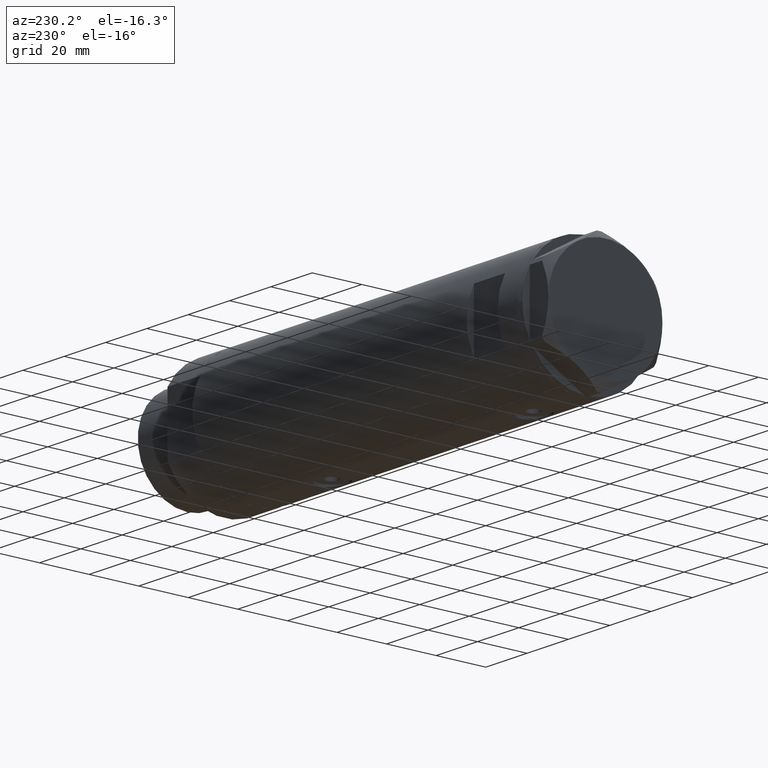
[diagram: clean part render]
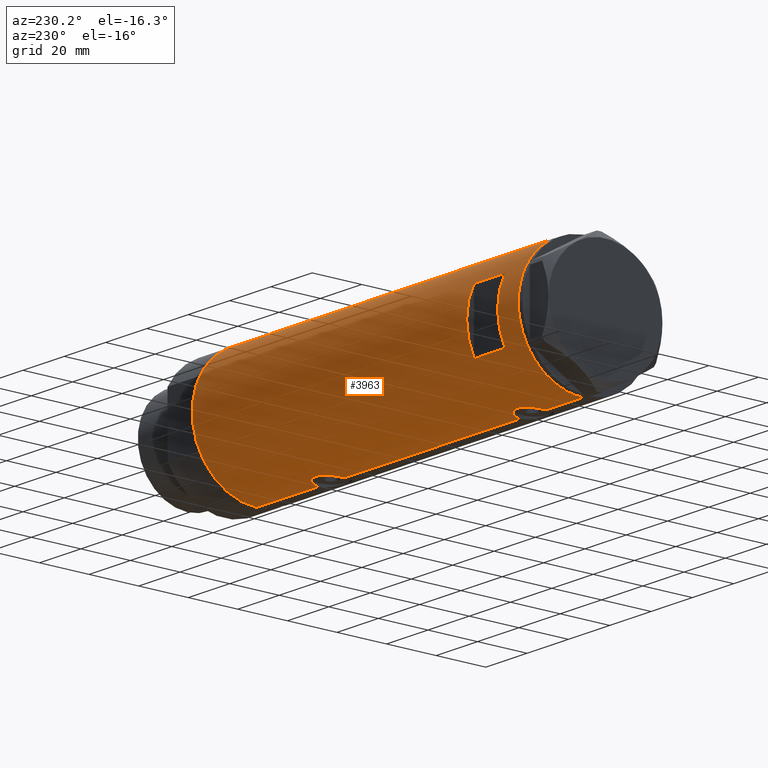
[diagram: same view with one face highlighted and labeled with its STEP entity id]
A machine part, auxiliary view. The second image highlights one B-rep face of the part: STEP entity #3963.
In plain terms, the highlighted cylindrical surface (partial cylindrical patch) has radius 26 mm, axis along (-1, -0, 0).
Its self-contained STEP definition (entity closure, byte-faithful):
#7 = CARTESIAN_POINT ( 'NONE',  ( 24.90951684770588415, 7.451587374037535128, 58.46604395478803440 ) ) ;
#12 = CARTESIAN_POINT ( 'NONE',  ( -25.52275868012767646, 4.960454986366448438, 51.14238370593368899 ) ) ;
#48 = EDGE_CURVE ( 'NONE', #4549, #1861, #3629, .T. ) ;
#57 = CARTESIAN_POINT ( 'NONE',  ( 25.01140519645288762, 7.101774040639623919, -42.17392235700824443 ) ) ;
#89 = CARTESIAN_POINT ( 'NONE',  ( 25.48882460966380492, 5.133289275481218716, -45.22343523597909609 ) ) ;
#99 = DIRECTION ( 'NONE',  ( 0.000000000000000000, 0.000000000000000000, 1.000000000000000000 ) ) ;
#110 = CARTESIAN_POINT ( 'NONE',  ( 25.89067367629246164, 2.424883365422552561, -32.63594795494832113 ) ) ;
#111 = LINE ( 'NONE', #866, #1901 ) ;
#115 = DIRECTION ( 'NONE',  ( 0.000000000000000000, 1.000000000000000000, -4.536969091016264466E-15 ) ) ;
#128 = CARTESIAN_POINT ( 'NONE',  ( 25.88814720404043968, 2.420758939209242566, -46.85288286828453863 ) ) ;
#148 = CARTESIAN_POINT ( 'NONE',  ( 25.89067367629246164, 2.424883365422551229, 66.56405204505169593 ) ) ;
#177 = CARTESIAN_POINT ( 'NONE',  ( 24.89484527721569052, 7.499778575171895056, 58.95449194517063773 ) ) ;
#192 = CARTESIAN_POINT ( 'NONE',  ( -25.23757896588370286, 6.250168635417627350, 54.54324691589500418 ) ) ;
#228 = AXIS2_PLACEMENT_3D ( 'NONE', #3494, #3446, #3909 ) ;
#244 = CARTESIAN_POINT ( 'NONE',  ( -25.52242378584899285, 4.965907353613394193, 58.76719602921738783 ) ) ;
#277 = CARTESIAN_POINT ( 'NONE',  ( -26.00000000000000355, 3.184081677783118585E-15, 78.95000000000000284 ) ) ;
#282 = CARTESIAN_POINT ( 'NONE',  ( -25.31738333113901618, 5.918941409682885180, -40.63242077527679186 ) ) ;
#315 = AXIS2_PLACEMENT_3D ( 'NONE', #2552, #2898, #4501 ) ;
#322 = CARTESIAN_POINT ( 'NONE',  ( -25.38875076695534716, 5.605452563035134617, 52.17814099175896558 ) ) ;
#327 = LINE ( 'NONE', #4713, #2987 ) ;
#339 = CARTESIAN_POINT ( 'NONE',  ( -25.67176285215957066, 4.128807479817786508, -47.35991598451124673 ) ) ;
#359 = CARTESIAN_POINT ( 'NONE',  ( -25.72087293759779314, 3.814831448865740438, -47.61738294827858908 ) ) ;
#370 = ORIENTED_EDGE ( 'NONE', *, *, #48, .F. ) ;
#384 = CARTESIAN_POINT ( 'NONE',  ( -25.27696731428695642, 6.089059008147568619, -41.22583693040520103 ) ) ;
#447 = CARTESIAN_POINT ( 'NONE',  ( 26.00000000000000000, 0.2455784580650491877, -32.25000000000000000 ) ) ;
#456 = LINE ( 'NONE', #2627, #1740 ) ;
#484 = CARTESIAN_POINT ( 'NONE',  ( 0.000000000000000000, 0.000000000000000000, 78.95000000000000284 ) ) ;
#493 = CARTESIAN_POINT ( 'NONE',  ( 25.99652140603930661, 0.4914164889130520075, 66.93796820480456233 ) ) ;
#501 = CARTESIAN_POINT ( 'NONE',  ( 25.78997056644824326, 3.329333406239038951, -33.01165191566153823 ) ) ;
#532 = ORIENTED_EDGE ( 'NONE', *, *, #4282, .T. ) ;
#537 = CARTESIAN_POINT ( 'NONE',  ( 25.78922176490237916, 3.335318700939509995, 52.71449431233524052 ) ) ;
#542 = CARTESIAN_POINT ( 'NONE',  ( 26.00000000000000711, 0.4983968644076025023, -47.25000000000000000 ) ) ;
#562 = CARTESIAN_POINT ( 'NONE',  ( 25.93077501166307286, 1.957027822413553109, 66.70697858562409976 ) ) ;
#582 = DIRECTION ( 'NONE',  ( 0.000000000000000000, 0.000000000000000000, 1.000000000000000000 ) ) ;
#636 = DIRECTION ( 'NONE',  ( 1.000000000000000000, -5.329070518200751394E-15, 0.000000000000000000 ) ) ;
#664 = DIRECTION ( 'NONE',  ( -0.000000000000000000, -0.000000000000000000, -1.000000000000000000 ) ) ;
#686 = EDGE_LOOP ( 'NONE', ( #884, #1876, #1244, #3787 ) ) ;
#709 = CARTESIAN_POINT ( 'NONE',  ( -26.00000000000000355, 3.184077527313362130E-15, 48.70000000000000995 ) ) ;
#719 = DIRECTION ( 'NONE',  ( 0.000000000000000000, 0.000000000000000000, 1.000000000000000000 ) ) ;
#726 = CARTESIAN_POINT ( 'NONE',  ( -25.23766275406409321, 6.249830297096033327, -42.23808095444884714 ) ) ;
#729 = CARTESIAN_POINT ( 'NONE',  ( 25.98569222077105678, 0.9879514382926382066, 51.99918153312441405 ) ) ;
#739 = DIRECTION ( 'NONE',  ( 0.000000000000000000, 0.000000000000000000, 1.000000000000000000 ) ) ;
#755 = CARTESIAN_POINT ( 'NONE',  ( -25.67095236150573712, 4.133649689219794254, -37.94464771725741770 ) ) ;
#781 = CARTESIAN_POINT ( 'NONE',  ( -26.00000000000000355, 3.184077527325983904E-15, -48.90000000000001279 ) ) ;
#788 = CARTESIAN_POINT ( 'NONE',  ( 26.00000000000000355, 0.000000000000000000, -78.95000000000000284 ) ) ;
#806 = CARTESIAN_POINT ( 'NONE',  ( -25.38875076695535071, 5.605452563035138169, -45.42185900824106426 ) ) ;
#826 = VECTOR ( 'NONE', #3342, 1000.000000000000000 ) ;
#829 = VECTOR ( 'NONE', #719, 1000.000000000000000 ) ;
#844 = ORIENTED_EDGE ( 'NONE', *, *, #4923, .F. ) ;
#849 = DIRECTION ( 'NONE',  ( 0.000000000000000000, 4.625929269271486900E-15, 1.000000000000000000 ) ) ;
#866 = CARTESIAN_POINT ( 'NONE',  ( 12.12435565298214080, 23.00000000000000355, -78.95000000000000284 ) ) ;
#875 = CARTESIAN_POINT ( 'NONE',  ( -12.12435565298214080, 23.00000000000000355, 68.95000000000003126 ) ) ;
#883 = CARTESIAN_POINT ( 'NONE',  ( 24.95233689475079331, 7.306396477445179727, 57.73896186853336587 ) ) ;
#884 = ORIENTED_EDGE ( 'NONE', *, *, #2285, .F. ) ;
#888 = CARTESIAN_POINT ( 'NONE',  ( 24.96662810169869573, 7.257932614256868753, -37.79702690473265392 ) ) ;
#917 = CARTESIAN_POINT ( 'NONE',  ( 25.86510134953875450, 2.654921787384013854, -46.76867061694904493 ) ) ;
#930 = CARTESIAN_POINT ( 'NONE',  ( 25.59528664075984494, 4.573671112500300673, 53.50090496483274904 ) ) ;
#936 = CARTESIAN_POINT ( 'NONE',  ( 25.72923282622328855, 3.765147152416745246, -46.25485575784708914 ) ) ;
#952 = CARTESIAN_POINT ( 'NONE',  ( 25.72868876879096334, 3.768709330223684706, 65.95267486870066875 ) ) ;
#973 = CARTESIAN_POINT ( 'NONE',  ( -25.95015815577423268, 1.621168830448741938, 60.98958570439820193 ) ) ;
#984 = CARTESIAN_POINT ( 'NONE',  ( 25.99999999999999645, 0.2455784580650495763, 66.94999999999998863 ) ) ;
#998 = CARTESIAN_POINT ( 'NONE',  ( 26.00000000000000355, 0.000000000000000000, -78.95000000000000284 ) ) ;
#1025 = CARTESIAN_POINT ( 'NONE',  ( -25.72105193281917224, 3.813738527046911297, 59.91833691099432713 ) ) ;
#1045 = CARTESIAN_POINT ( 'NONE',  ( -25.28673619335055278, 6.048783215285168602, 53.32449009651820404 ) ) ;
#1099 = CARTESIAN_POINT ( 'NONE',  ( -25.90661719257678541, 2.209805098346977914, -36.80011254218479166 ) ) ;
#1127 = EDGE_CURVE ( 'NONE', #3285, #5065, #2891, .T. ) ;
#1133 = CARTESIAN_POINT ( 'NONE',  ( -12.12435565298214080, 23.00000000000000355, -78.95000000000000284 ) ) ;
#1141 = CARTESIAN_POINT ( 'NONE',  ( 26.00000000000000355, 0.000000000000000000, -78.95000000000000284 ) ) ;
#1151 = CARTESIAN_POINT ( 'NONE',  ( -25.33346170681504006, 5.849967696906725578, -40.44052947900493677 ) ) ;
#1181 = CARTESIAN_POINT ( 'NONE',  ( -25.31518616157687873, 5.930210831981644226, -44.66587117207026836 ) ) ;
#1189 = CARTESIAN_POINT ( 'NONE',  ( -25.92432690655986960, 2.018143994254070872, 49.02070577177285315 ) ) ;
#1207 = CARTESIAN_POINT ( 'NONE',  ( -25.81206132723604441, 3.139065735901513055, -48.06978769360877379 ) ) ;
#1237 = CARTESIAN_POINT ( 'NONE',  ( 25.38117076385348625, 5.641057083563588037, -34.80143420258151110 ) ) ;
#1244 = ORIENTED_EDGE ( 'NONE', *, *, #3218, .F. ) ;
#1266 = CARTESIAN_POINT ( 'NONE',  ( 25.38132706741445688, 5.649034551923786118, -44.70731952814045229 ) ) ;
#1289 = CARTESIAN_POINT ( 'NONE',  ( 25.78922176490237916, 3.335318700939508219, -46.48550568766475521 ) ) ;
#1297 = EDGE_CURVE ( 'NONE', #4935, #5056, #327, .T. ) ;
#1298 = EDGE_CURVE ( 'NONE', #2548, #4577, #1313, .T. ) ;
#1313 = CIRCLE ( 'NONE', #4246, 26.00000000000000355 ) ;
#1331 = CARTESIAN_POINT ( 'NONE',  ( 25.27545867390324474, 6.096774941222085964, 63.82477406957966082 ) ) ;
#1338 = CARTESIAN_POINT ( 'NONE',  ( 25.98569222077104968, 0.9879514382926379845, -47.20081846687561011 ) ) ;
#1378 = CARTESIAN_POINT ( 'NONE',  ( 25.52590365620543622, 4.955152228772147893, 65.10123727588241138 ) ) ;
#1398 = CARTESIAN_POINT ( 'NONE',  ( -25.31738333113901973, 5.918941409682879851, 56.96757922472323799 ) ) ;
#1426 = CARTESIAN_POINT ( 'NONE',  ( -25.99009688862344092, 0.8219492608955323298, 61.15915939226576370 ) ) ;
#1468 = CARTESIAN_POINT ( 'NONE',  ( -25.36894112891956965, 5.694149517195234544, 52.36517494801690731 ) ) ;
#1493 = CARTESIAN_POINT ( 'NONE',  ( -25.95208098418916975, 1.628413954368978622, -48.69806792170717813 ) ) ;
#1537 = LINE ( 'NONE', #1141, #829 ) ;
#1540 = ORIENTED_EDGE ( 'NONE', *, *, #1297, .T. ) ;
#1544 = CARTESIAN_POINT ( 'NONE',  ( -25.95015815577423623, 1.621168830448744380, -36.61041429560181371 ) ) ;
#1554 = CARTESIAN_POINT ( 'NONE',  ( -25.99999999999999289, 0.2043916521039015888, 48.69999999999999574 ) ) ;
#1571 = CARTESIAN_POINT ( 'NONE',  ( -25.57167265924275412, 4.701795585128879296, -46.77276288310034147 ) ) ;
#1603 = CARTESIAN_POINT ( 'NONE',  ( 25.11550258961940330, 6.725017566862032226, 62.77928477806020169 ) ) ;
#1629 = CARTESIAN_POINT ( 'NONE',  ( 24.90951684770588415, 7.451587374037536016, -40.73395604521197555 ) ) ;
#1717 = CARTESIAN_POINT ( 'NONE',  ( 25.72923282622329566, 3.765147152416745246, 52.94514424215292081 ) ) ;
#1723 = CARTESIAN_POINT ( 'NONE',  ( 25.11254978876589306, 6.737777305585159304, -43.08025351746413634 ) ) ;
#1731 = AXIS2_PLACEMENT_3D ( 'NONE', #484, #99, #4927 ) ;
#1739 = EDGE_CURVE ( 'NONE', #3746, #4549, #3403, .T. ) ;
#1740 = VECTOR ( 'NONE', #582, 1000.000000000000000 ) ;
#1747 = CARTESIAN_POINT ( 'NONE',  ( 25.97197502027376004, 1.230965554787596394, 66.85240824498376355 ) ) ;
#1842 = CARTESIAN_POINT ( 'NONE',  ( -25.24784248027030031, 6.209126813737962713, 54.12731838311943022 ) ) ;
#1861 = VERTEX_POINT ( 'NONE', #3731 ) ;
#1876 = ORIENTED_EDGE ( 'NONE', *, *, #2480, .F. ) ;
#1881 = CARTESIAN_POINT ( 'NONE',  ( 25.94484652078419273, 1.709678645892020343, 52.14334653240825190 ) ) ;
#1887 = CARTESIAN_POINT ( 'NONE',  ( -26.00000000000000355, -2.813058302341337106E-16, 61.20000000000000284 ) ) ;
#1901 = VECTOR ( 'NONE', #3638, 1000.000000000000000 ) ;
#1921 = CARTESIAN_POINT ( 'NONE',  ( -25.95208098418916620, 1.628413954368980399, 48.90193207829285882 ) ) ;
#1923 = CARTESIAN_POINT ( 'NONE',  ( -26.00000000000000355, 3.184081677783118585E-15, -78.95000000000000284 ) ) ;
#1941 = EDGE_CURVE ( 'NONE', #4321, #2261, #4254, .T. ) ;
#1947 = CARTESIAN_POINT ( 'NONE',  ( -25.43062364804612230, 5.412314182902753679, 51.81772351419070333 ) ) ;
#1963 = CARTESIAN_POINT ( 'NONE',  ( -25.92432690655987315, 2.018143994254076201, -48.57929422822716958 ) ) ;
#1971 = CARTESIAN_POINT ( 'NONE',  ( -25.85449082491264861, 2.772892880050687126, 49.33390702514680015 ) ) ;
#1989 = CARTESIAN_POINT ( 'NONE',  ( -25.28673619335055989, 6.048783215285176595, -44.27550990348180449 ) ) ;
#1994 = CARTESIAN_POINT ( 'NONE',  ( 25.52465069878074644, 4.952713637311400241, 53.81255139184744252 ) ) ;
#2049 = CARTESIAN_POINT ( 'NONE',  ( 26.00000000000000355, -3.975025925197986111E-20, -32.25000000000000000 ) ) ;
#2089 = FACE_OUTER_BOUND ( 'NONE', #4962, .T. ) ;
#2096 = CARTESIAN_POINT ( 'NONE',  ( 24.97016856345952363, 7.245430721349218395, 57.49696959080608138 ) ) ;
#2117 = CARTESIAN_POINT ( 'NONE',  ( 25.86510134953875450, 2.654921787384014298, 52.43132938305096502 ) ) ;
#2122 = CARTESIAN_POINT ( 'NONE',  ( 26.00000000000000355, 3.343657407582877388E-16, -47.25000000000000000 ) ) ;
#2136 = CARTESIAN_POINT ( 'NONE',  ( 25.48882460966380847, 5.133289275481219605, 53.97656476402093517 ) ) ;
#2143 = CARTESIAN_POINT ( 'NONE',  ( 25.17424625143663164, 6.506691718592096940, -43.51241626033723975 ) ) ;
#2169 = CARTESIAN_POINT ( 'NONE',  ( 26.00000000000000355, -3.975028449552882818E-20, 66.95000000000000284 ) ) ;
#2203 = VERTEX_POINT ( 'NONE', #3952 ) ;
#2229 = CARTESIAN_POINT ( 'NONE',  ( -25.27696731428695998, 6.089059008147561514, 56.37416306959482171 ) ) ;
#2242 = CARTESIAN_POINT ( 'NONE',  ( -26.00000000000000355, -2.813058302341337106E-16, 61.20000000000000284 ) ) ;
#2261 = VERTEX_POINT ( 'NONE', #1923 ) ;
#2285 = EDGE_CURVE ( 'NONE', #2203, #2548, #3135, .T. ) ;
#2302 = CARTESIAN_POINT ( 'NONE',  ( -25.98057228346869962, 1.024901789261879470, -48.81880585854828070 ) ) ;
#2309 = CARTESIAN_POINT ( 'NONE',  ( -25.98057228346870673, 1.024901789261881913, 48.78119414145176336 ) ) ;
#2344 = CARTESIAN_POINT ( 'NONE',  ( -25.99759026373432036, 0.4091325989570642196, 48.71000109955099333 ) ) ;
#2362 = CARTESIAN_POINT ( 'NONE',  ( -25.81251897318926680, 3.135439098787741852, -37.22800821914827907 ) ) ;
#2445 = CARTESIAN_POINT ( 'NONE',  ( 25.97197502027375293, 1.230965554787593730, -32.34759175501623218 ) ) ;
#2468 = CARTESIAN_POINT ( 'NONE',  ( 25.59528664075983428, 4.573671112500298896, -45.69909503516725380 ) ) ;
#2480 = EDGE_CURVE ( 'NONE', #3560, #2203, #2830, .T. ) ;
#2485 = CARTESIAN_POINT ( 'NONE',  ( 25.17636585680006434, 6.493453152855875210, 63.21099249662805164 ) ) ;
#2486 = ORIENTED_EDGE ( 'NONE', *, *, #2707, .T. ) ;
#2493 = CARTESIAN_POINT ( 'NONE',  ( 25.03487248886523986, 7.018875226450791871, -42.40423217392064714 ) ) ;
#2515 = CARTESIAN_POINT ( 'NONE',  ( 25.38132706741445688, 5.649034551923787895, 54.49268047185956476 ) ) ;
#2520 = CARTESIAN_POINT ( 'NONE',  ( 25.63006864069249602, 4.375159448492148329, -45.84654411758881309 ) ) ;
#2535 = CARTESIAN_POINT ( 'NONE',  ( 25.38117076385348270, 5.641057083563592478, 64.39856579741849885 ) ) ;
#2542 = CARTESIAN_POINT ( 'NONE',  ( 25.41763780493360514, 5.474943943663457269, -34.61823686211066331 ) ) ;
#2548 = VERTEX_POINT ( 'NONE', #875 ) ;
#2552 = CARTESIAN_POINT ( 'NONE',  ( 0.000000000000000000, 0.000000000000000000, -78.95000000000000284 ) ) ;
#2559 = CARTESIAN_POINT ( 'NONE',  ( 25.00820649268566598, 7.115348876445588999, 61.87184000475453161 ) ) ;
#2574 = ORIENTED_EDGE ( 'NONE', *, *, #4125, .F. ) ;
#2582 = CARTESIAN_POINT ( 'NONE',  ( -25.42927140605241121, 5.422776733968213136, 58.08443996013282629 ) ) ;
#2592 = CARTESIAN_POINT ( 'NONE',  ( 25.92799636947106023, 1.948138538329397873, 52.20322312211786908 ) ) ;
#2627 = CARTESIAN_POINT ( 'NONE',  ( -26.00000000000000355, 3.184081677783118585E-15, -78.95000000000000284 ) ) ;
#2628 = CARTESIAN_POINT ( 'NONE',  ( -25.57189498399055338, 4.707763994471528157, 59.08090281055547166 ) ) ;
#2656 = DIRECTION ( 'NONE',  ( 0.000000000000000000, 0.000000000000000000, 1.000000000000000000 ) ) ;
#2669 = CARTESIAN_POINT ( 'NONE',  ( 26.00000000000000355, -3.975025925197986111E-20, -32.25000000000000000 ) ) ;
#2707 = EDGE_CURVE ( 'NONE', #2261, #5065, #456, .T. ) ;
#2729 = CARTESIAN_POINT ( 'NONE',  ( -25.57167265924276123, 4.701795585128874855, 50.82723711689968837 ) ) ;
#2745 = CIRCLE ( 'NONE', #1731, 26.00000000000000355 ) ;
#2751 = CARTESIAN_POINT ( 'NONE',  ( -25.57189498399056049, 4.707763994471534374, -38.51909718944452266 ) ) ;
#2780 = CARTESIAN_POINT ( 'NONE',  ( -25.96182217530152769, 1.422664245316466847, -36.56064726907609952 ) ) ;
#2809 = CARTESIAN_POINT ( 'NONE',  ( -25.98789693408479451, 0.8193301824841956460, 48.75051019734655000 ) ) ;
#2830 = CIRCLE ( 'NONE', #4594, 26.00000000000000355 ) ;
#2838 = CARTESIAN_POINT ( 'NONE',  ( 25.93077501166307641, 1.957027822413551332, -32.49302141437591729 ) ) ;
#2862 = CARTESIAN_POINT ( 'NONE',  ( 25.20855488770171959, 6.367749707222635891, -35.77997776959043108 ) ) ;
#2865 = EDGE_CURVE ( 'NONE', #3557, #4298, #4678, .T. ) ;
#2882 = CARTESIAN_POINT ( 'NONE',  ( 12.12435565298213724, 23.00000000000000355, 53.95000000000002416 ) ) ;
#2887 = CARTESIAN_POINT ( 'NONE',  ( 25.27545867390324119, 6.096774941222088628, -35.37522593042034202 ) ) ;
#2891 = B_SPLINE_CURVE_WITH_KNOTS ( 'NONE', 3,
 ( #3099, #4698, #3574, #2780, #1544, #4406, #1099, #3944, #2362, #3549, #755, #2751, #3885, #3968, #4327, #1151, #282, #5152, #384, #4807, #726, #3126, #3496, #1989, #1181, #4782, #806, #4384, #3149, #5094, #4302, #1571, #4749, #339, #359, #1207, #3207, #1963, #1493, #2302, #3180, #3606, #5175, #781 ),
 .UNSPECIFIED., .F., .F.,
 ( 4, 2, 2, 2, 2, 2, 2, 2, 2, 2, 2, 2, 2, 2, 2, 2, 2, 2, 2, 2, 2, 4 ),
 ( 6.153461189582338581E-19, 0.001225774033668418535, 0.001838661050502624550, 0.002451548067336830564, 0.003677322101005242594, 0.004903096134673655924, 0.006128870168342067520, 0.007354644202010479984, 0.007967531218844674940, 0.008580418235678871630, 0.009806192269347263277, 0.01103196630301565666, 0.01225774033668404657, 0.01287062735351824326, 0.01348351437035243995, 0.01409640138718663491, 0.01470928840402082986, 0.01593506243768923539, 0.01716083647135764612, 0.01838661050502604991, 0.01899949752186025353, 0.01961238453869445370 ),
 .UNSPECIFIED. ) ;
#2898 = DIRECTION ( 'NONE',  ( 0.000000000000000000, 0.000000000000000000, 1.000000000000000000 ) ) ;
#2938 = CARTESIAN_POINT ( 'NONE',  ( 24.90976107960111818, 7.450765568638821890, -38.76117130648535181 ) ) ;
#2940 = CARTESIAN_POINT ( 'NONE',  ( 26.00000000000000355, 0.000000000000000000, 78.95000000000000284 ) ) ;
#2953 = CARTESIAN_POINT ( 'NONE',  ( 24.90976107960111818, 7.450765568638821890, 60.43882869351467235 ) ) ;
#2971 = CARTESIAN_POINT ( 'NONE',  ( -25.85406084573620689, 2.777003695811653738, 60.56412841326095275 ) ) ;
#2987 = VECTOR ( 'NONE', #2656, 1000.000000000000000 ) ;
#3032 = CARTESIAN_POINT ( 'NONE',  ( 0.000000000000000000, 0.000000000000000000, 68.95000000000003126 ) ) ;
#3066 = CARTESIAN_POINT ( 'NONE',  ( 26.00000000000000355, -7.221007372182803218E-17, 51.95000000000000284 ) ) ;
#3099 = CARTESIAN_POINT ( 'NONE',  ( -26.00000000000000355, -6.335391871414786776E-16, -36.39999999999999858 ) ) ;
#3126 = CARTESIAN_POINT ( 'NONE',  ( -25.23757896588369221, 6.250168635417630902, -43.05675308410503987 ) ) ;
#3132 = DIRECTION ( 'NONE',  ( 0.000000000000000000, 0.000000000000000000, 1.000000000000000000 ) ) ;
#3135 = LINE ( 'NONE', #1133, #3759 ) ;
#3147 = CARTESIAN_POINT ( 'NONE',  ( 12.12435565298214080, 23.00000000000000355, 68.95000000000003126 ) ) ;
#3149 = CARTESIAN_POINT ( 'NONE',  ( -25.45277932469922177, 5.307477387851101014, -45.95672800165312566 ) ) ;
#3180 = CARTESIAN_POINT ( 'NONE',  ( -25.98789693408478385, 0.8193301824841990877, -48.84948980265347984 ) ) ;
#3207 = CARTESIAN_POINT ( 'NONE',  ( -25.85449082491263439, 2.772892880050690234, -48.26609297485322969 ) ) ;
#3218 = EDGE_CURVE ( 'NONE', #4577, #3560, #111, .T. ) ;
#3227 = CARTESIAN_POINT ( 'NONE',  ( 26.00000000000000355, 0.000000000000000000, -78.95000000000000284 ) ) ;
#3285 = VERTEX_POINT ( 'NONE', #3839 ) ;
#3293 = CARTESIAN_POINT ( 'NONE',  ( 24.95233689475079331, 7.306396477445179727, -41.46103813146665829 ) ) ;
#3298 = ORIENTED_EDGE ( 'NONE', *, *, #2865, .F. ) ;
#3313 = CARTESIAN_POINT ( 'NONE',  ( 25.92799636947105313, 1.948138538329397651, -46.99677687788213376 ) ) ;
#3332 = CARTESIAN_POINT ( 'NONE',  ( 25.11254978876589661, 6.737777305585160192, 56.11974648253588782 ) ) ;
#3339 = CARTESIAN_POINT ( 'NONE',  ( 25.11550258961939974, 6.725017566862030449, -36.42071522193980826 ) ) ;
#3342 = DIRECTION ( 'NONE',  ( 0.000000000000000000, 0.000000000000000000, 1.000000000000000000 ) ) ;
#3360 = CARTESIAN_POINT ( 'NONE',  ( 25.98255381630415073, 0.9836221648041312271, 66.88933098058191717 ) ) ;
#3403 = B_SPLINE_CURVE_WITH_KNOTS ( 'NONE', 3,
 ( #2122, #542, #1338, #3716, #3313, #128, #917, #1289, #936, #2520, #2468, #4916, #89, #1266, #4102, #2143, #1723, #2493, #57, #4124, #3293, #1629, #3732, #3692, #2938, #888, #4891, #4835, #3339, #4144, #2862, #2887, #4944, #1237, #2542, #4541, #3758, #3661, #501, #110, #2838, #2445, #4446, #4050, #447, #2049 ),
 .UNSPECIFIED., .F., .F.,
 ( 4, 2, 2, 2, 2, 2, 2, 2, 2, 2, 2, 2, 2, 2, 2, 2, 2, 2, 2, 2, 2, 2, 4 ),
 ( 3.246886709775799722E-19, 0.001473395154583074379, 0.002210092731874609400, 0.002946790309166144421, 0.004420185463749214463, 0.005156883041040750786, 0.005893580618332287108, 0.007366975772915358017, 0.008840370927498430662, 0.009577068504789955708, 0.01031376608208147902, 0.01178716123666452911, 0.01326055639124757921, 0.01473395154583062930, 0.01547064912312214567, 0.01620734670041366204, 0.01694404427770517668, 0.01768074185499669479, 0.01915413700957973794, 0.02062753216416278457, 0.02210092731874583119, 0.02283762489603735277, 0.02357432247332888128 ),
 .UNSPECIFIED. ) ;
#3446 = DIRECTION ( 'NONE',  ( 0.000000000000000000, 0.000000000000000000, 1.000000000000000000 ) ) ;
#3476 = ORIENTED_EDGE ( 'NONE', *, *, #3550, .F. ) ;
#3478 = CARTESIAN_POINT ( 'NONE',  ( -25.96182217530152769, 1.422664245316465070, 61.03935273092390190 ) ) ;
#3494 = CARTESIAN_POINT ( 'NONE',  ( 0.000000000000000000, 0.000000000000000000, -78.95000000000000284 ) ) ;
#3496 = CARTESIAN_POINT ( 'NONE',  ( -25.24784248027029676, 6.209126813737969819, -43.47268161688059251 ) ) ;
#3504 = CARTESIAN_POINT ( 'NONE',  ( -25.92257874449351007, 2.014648337067150408, 60.86996418363676753 ) ) ;
#3549 = CARTESIAN_POINT ( 'NONE',  ( -25.72105193281916513, 3.813738527046914406, -37.68166308900568140 ) ) ;
#3550 = EDGE_CURVE ( 'NONE', #1861, #3557, #4128, .T. ) ;
#3557 = VERTEX_POINT ( 'NONE', #3708 ) ;
#3559 = CARTESIAN_POINT ( 'NONE',  ( -25.67176285215957421, 4.128807479817785620, 50.24008401548878311 ) ) ;
#3560 = VERTEX_POINT ( 'NONE', #2882 ) ;
#3566 = ORIENTED_EDGE ( 'NONE', *, *, #1941, .T. ) ;
#3574 = CARTESIAN_POINT ( 'NONE',  ( -25.99009688862344447, 0.8219492608955337731, -36.44084060773424483 ) ) ;
#3593 = CARTESIAN_POINT ( 'NONE',  ( -26.00000000000000355, 3.184077527313362130E-15, 48.70000000000000995 ) ) ;
#3606 = CARTESIAN_POINT ( 'NONE',  ( -25.99759026373433457, 0.4091325989570669952, -48.88999890044901520 ) ) ;
#3609 = CARTESIAN_POINT ( 'NONE',  ( 25.17424625143663164, 6.506691718592099605, 55.68758373966277020 ) ) ;
#3616 = CARTESIAN_POINT ( 'NONE',  ( -25.45277932469921822, 5.307477387851097461, 51.64327199834691129 ) ) ;
#3629 = LINE ( 'NONE', #3227, #3668 ) ;
#3638 = DIRECTION ( 'NONE',  ( -0.000000000000000000, -0.000000000000000000, -1.000000000000000000 ) ) ;
#3641 = ORIENTED_EDGE ( 'NONE', *, *, #1739, .F. ) ;
#3661 = CARTESIAN_POINT ( 'NONE',  ( 25.72868876879095623, 3.768709330223690479, -33.24732513129933409 ) ) ;
#3668 = VECTOR ( 'NONE', #4824, 1000.000000000000000 ) ;
#3692 = CARTESIAN_POINT ( 'NONE',  ( 24.89471231507667071, 7.500219916954787180, -39.26121773116972236 ) ) ;
#3708 = CARTESIAN_POINT ( 'NONE',  ( 26.00000000000000355, -3.975028449552882818E-20, 66.95000000000000284 ) ) ;
#3716 = CARTESIAN_POINT ( 'NONE',  ( 25.94484652078418563, 1.709678645892020787, -47.05665346759175804 ) ) ;
#3728 = CARTESIAN_POINT ( 'NONE',  ( 25.31017500740585291, 5.951503630041862891, 64.02049592637402498 ) ) ;
#3731 = CARTESIAN_POINT ( 'NONE',  ( 26.00000000000000355, -7.221007372182803218E-17, 51.95000000000000284 ) ) ;
#3732 = CARTESIAN_POINT ( 'NONE',  ( 24.89484527721569052, 7.499778575171895056, -40.24550805482936511 ) ) ;
#3743 = FACE_BOUND ( 'NONE', #686, .T. ) ;
#3746 = VERTEX_POINT ( 'NONE', #4397 ) ;
#3750 = CARTESIAN_POINT ( 'NONE',  ( 25.78997056644824326, 3.329333406239038506, 66.18834808433845751 ) ) ;
#3758 = CARTESIAN_POINT ( 'NONE',  ( 25.59685363299823280, 4.579266302355748053, -33.79027931897348225 ) ) ;
#3759 = VECTOR ( 'NONE', #739, 1000.000000000000000 ) ;
#3773 = CYLINDRICAL_SURFACE ( 'NONE', #315, 26.00000000000000355 ) ;
#3784 = CARTESIAN_POINT ( 'NONE',  ( 25.03487248886523986, 7.018875226450790095, 56.79576782607936281 ) ) ;
#3787 = ORIENTED_EDGE ( 'NONE', *, *, #1298, .F. ) ;
#3795 = ORIENTED_EDGE ( 'NONE', *, *, #3931, .F. ) ;
#3799 = CARTESIAN_POINT ( 'NONE',  ( -25.23766275406409321, 6.249830297096026221, 55.36191904555118271 ) ) ;
#3839 = CARTESIAN_POINT ( 'NONE',  ( -26.00000000000000355, -6.335391871414786776E-16, -36.39999999999999858 ) ) ;
#3847 = CARTESIAN_POINT ( 'NONE',  ( -25.24766879991037172, 6.209837761082653174, 55.76849569029696596 ) ) ;
#3885 = CARTESIAN_POINT ( 'NONE',  ( -25.52242378584899640, 4.965907353613397746, -38.83280397078262780 ) ) ;
#3890 = VERTEX_POINT ( 'NONE', #3593 ) ;
#3909 = DIRECTION ( 'NONE',  ( 1.000000000000000000, 0.000000000000000000, 0.000000000000000000 ) ) ;
#3931 = EDGE_CURVE ( 'NONE', #4298, #5056, #2745, .T. ) ;
#3932 = VECTOR ( 'NONE', #3132, 1000.000000000000000 ) ;
#3944 = CARTESIAN_POINT ( 'NONE',  ( -25.85406084573621754, 2.777003695811657735, -37.03587158673904156 ) ) ;
#3952 = CARTESIAN_POINT ( 'NONE',  ( -12.12435565298214080, 23.00000000000000355, 53.95000000000002416 ) ) ;
#3963 = ADVANCED_FACE ( 'NONE', ( #3743, #2089 ), #3773, .T. ) ;
#3968 = CARTESIAN_POINT ( 'NONE',  ( -25.42927140605242542, 5.422776733968219354, -39.51556003986718224 ) ) ;
#4050 = CARTESIAN_POINT ( 'NONE',  ( 25.99652140603931727, 0.4914164889130531177, -32.26203179519542630 ) ) ;
#4089 = CARTESIAN_POINT ( 'NONE',  ( 25.01140519645288762, 7.101774040639622143, 57.02607764299175130 ) ) ;
#4102 = CARTESIAN_POINT ( 'NONE',  ( 25.30960479024496479, 5.958491152160522830, -44.33139677679962887 ) ) ;
#4124 = CARTESIAN_POINT ( 'NONE',  ( 24.97016856345952718, 7.245430721349219283, -41.70303040919392856 ) ) ;
#4125 = EDGE_CURVE ( 'NONE', #4935, #3890, #5148, .T. ) ;
#4128 = B_SPLINE_CURVE_WITH_KNOTS ( 'NONE', 3,
 ( #3066, #4671, #729, #1881, #2592, #4487, #2117, #537, #1717, #4138, #930, #1994, #2136, #2515, #4535, #3609, #3332, #3784, #4089, #2096, #883, #7, #177, #4556, #2953, #4196, #2559, #4934, #1603, #2485, #4960, #1331, #3728, #2535, #4583, #1378, #4912, #952, #3750, #148, #562, #1747, #3360, #493, #984, #2169 ),
 .UNSPECIFIED., .F., .F.,
 ( 4, 2, 2, 2, 2, 2, 2, 2, 2, 2, 2, 2, 2, 2, 2, 2, 2, 2, 2, 2, 2, 2, 4 ),
 ( 7.012020075610059463E-20, 0.001473395154583048575, 0.002210092731874574272, 0.002946790309166099752, 0.004420185463749143340, 0.005156883041040665784, 0.005893580618332189096, 0.007366975772915219239, 0.008840370927498248516, 0.009577068504789763154, 0.01031376608208127779, 0.01178716123666430533, 0.01326055639124733287, 0.01473395154583036042, 0.01547064912312189240, 0.01620734670041342612, 0.01694404427770495464, 0.01768074185499648662, 0.01915413700957958529, 0.02062753216416268048, 0.02210092731874577221, 0.02283762489603732848, 0.02357432247332888128 ),
 .UNSPECIFIED. ) ;
#4138 = CARTESIAN_POINT ( 'NONE',  ( 25.63006864069251023, 4.375159448492147440, 53.35345588241118264 ) ) ;
#4144 = CARTESIAN_POINT ( 'NONE',  ( 25.17636585680005723, 6.493453152855874322, -35.98900750337197962 ) ) ;
#4187 = CARTESIAN_POINT ( 'NONE',  ( -25.33346170681504717, 5.849967696906719361, 57.15947052099508596 ) ) ;
#4196 = CARTESIAN_POINT ( 'NONE',  ( 24.96662810169869928, 7.257932614256870529, 61.40297309526737024 ) ) ;
#4230 = CARTESIAN_POINT ( 'NONE',  ( -25.38675822915648084, 5.615881323213569587, 57.72306781662010877 ) ) ;
#4246 = AXIS2_PLACEMENT_3D ( 'NONE', #3032, #664, #636 ) ;
#4254 = CIRCLE ( 'NONE', #228, 26.00000000000000355 ) ;
#4259 = CARTESIAN_POINT ( 'NONE',  ( -25.90661719257679252, 2.209805098346976138, 60.79988745781522397 ) ) ;
#4282 = EDGE_CURVE ( 'NONE', #3285, #3890, #4471, .T. ) ;
#4298 = VERTEX_POINT ( 'NONE', #2940 ) ;
#4302 = CARTESIAN_POINT ( 'NONE',  ( -25.52275868012768711, 4.960454986366452879, -46.45761629406634796 ) ) ;
#4312 = CARTESIAN_POINT ( 'NONE',  ( -25.49884629689154281, 5.081547904122033721, 51.30560194303910748 ) ) ;
#4321 = VERTEX_POINT ( 'NONE', #998 ) ;
#4327 = CARTESIAN_POINT ( 'NONE',  ( -25.38675822915648439, 5.615881323213576692, -39.87693218337989975 ) ) ;
#4384 = CARTESIAN_POINT ( 'NONE',  ( -25.43062364804612230, 5.412314182902757231, -45.78227648580933362 ) ) ;
#4391 = CARTESIAN_POINT ( 'NONE',  ( -25.72087293759780380, 3.814831448865741770, 49.98261705172143365 ) ) ;
#4397 = CARTESIAN_POINT ( 'NONE',  ( 26.00000000000000355, 3.343657407582877388E-16, -47.25000000000000000 ) ) ;
#4399 = CARTESIAN_POINT ( 'NONE',  ( -26.00000000000000355, 3.184077527325983904E-15, -48.90000000000001279 ) ) ;
#4406 = CARTESIAN_POINT ( 'NONE',  ( -25.92257874449351007, 2.014648337067152184, -36.73003581636322679 ) ) ;
#4446 = CARTESIAN_POINT ( 'NONE',  ( 25.98255381630415783, 0.9836221648041303389, -32.31066901941808567 ) ) ;
#4452 = CARTESIAN_POINT ( 'NONE',  ( 0.000000000000000000, 0.000000000000000000, 53.95000000000012363 ) ) ;
#4471 = LINE ( 'NONE', #4919, #826 ) ;
#4487 = CARTESIAN_POINT ( 'NONE',  ( 25.88814720404044323, 2.420758939209245231, 52.34711713171547132 ) ) ;
#4501 = DIRECTION ( 'NONE',  ( 1.000000000000000000, 0.000000000000000000, 0.000000000000000000 ) ) ;
#4535 = CARTESIAN_POINT ( 'NONE',  ( 25.30960479024496834, 5.958491152160525495, 54.86860322320039529 ) ) ;
#4541 = CARTESIAN_POINT ( 'NONE',  ( 25.52590365620542912, 4.955152228772147893, -34.09876272411761278 ) ) ;
#4549 = VERTEX_POINT ( 'NONE', #2669 ) ;
#4556 = CARTESIAN_POINT ( 'NONE',  ( 24.89471231507667426, 7.500219916954786292, 59.93878226883027338 ) ) ;
#4577 = VERTEX_POINT ( 'NONE', #3147 ) ;
#4583 = CARTESIAN_POINT ( 'NONE',  ( 25.41763780493360869, 5.474943943663453716, 64.58176313788939638 ) ) ;
#4594 = AXIS2_PLACEMENT_3D ( 'NONE', #4452, #849, #115 ) ;
#4626 = CARTESIAN_POINT ( 'NONE',  ( -25.67095236150574067, 4.133649689219791590, 59.65535228274259083 ) ) ;
#4648 = CARTESIAN_POINT ( 'NONE',  ( -25.28915991580759837, 6.038390257328908106, 56.57552651146907152 ) ) ;
#4671 = CARTESIAN_POINT ( 'NONE',  ( 26.00000000000000711, 0.4983968644076020582, 51.95000000000000995 ) ) ;
#4678 = LINE ( 'NONE', #788, #3932 ) ;
#4698 = CARTESIAN_POINT ( 'NONE',  ( -26.00000000000001066, 0.4145874687851193729, -36.40000000000000568 ) ) ;
#4713 = CARTESIAN_POINT ( 'NONE',  ( -26.00000000000000355, 3.184081677783118585E-15, -78.95000000000000284 ) ) ;
#4749 = CARTESIAN_POINT ( 'NONE',  ( -25.59680708126580129, 4.563450671387943913, -46.92543949979972240 ) ) ;
#4782 = CARTESIAN_POINT ( 'NONE',  ( -25.36894112891956610, 5.694149517195238985, -45.23482505198308701 ) ) ;
#4807 = CARTESIAN_POINT ( 'NONE',  ( -25.24766879991037527, 6.209837761082662055, -41.83150430970304967 ) ) ;
#4824 = DIRECTION ( 'NONE',  ( 0.000000000000000000, 0.000000000000000000, 1.000000000000000000 ) ) ;
#4835 = CARTESIAN_POINT ( 'NONE',  ( 25.08669247833291749, 6.831361936037321669, -36.64462260596211252 ) ) ;
#4891 = CARTESIAN_POINT ( 'NONE',  ( 25.00820649268565887, 7.115348876445586335, -37.32815999524549966 ) ) ;
#4912 = CARTESIAN_POINT ( 'NONE',  ( 25.59685363299822924, 4.579266302355740947, 65.40972068102654191 ) ) ;
#4916 = CARTESIAN_POINT ( 'NONE',  ( 25.52465069878074999, 4.952713637311402906, -45.38744860815256743 ) ) ;
#4919 = CARTESIAN_POINT ( 'NONE',  ( -26.00000000000000355, 3.184081677783118585E-15, -78.95000000000000284 ) ) ;
#4923 = EDGE_CURVE ( 'NONE', #4321, #3746, #1537, .T. ) ;
#4927 = DIRECTION ( 'NONE',  ( 1.000000000000000000, 0.000000000000000000, 0.000000000000000000 ) ) ;
#4934 = CARTESIAN_POINT ( 'NONE',  ( 25.08669247833292815, 6.831361936037320781, 62.55537739403792585 ) ) ;
#4935 = VERTEX_POINT ( 'NONE', #2242 ) ;
#4944 = CARTESIAN_POINT ( 'NONE',  ( 25.31017500740584936, 5.951503630041857562, -35.17950407362597076 ) ) ;
#4955 = ORIENTED_EDGE ( 'NONE', *, *, #1127, .F. ) ;
#4960 = CARTESIAN_POINT ( 'NONE',  ( 25.20855488770172670, 6.367749707222635891, 63.42002223040960018 ) ) ;
#4962 = EDGE_LOOP ( 'NONE', ( #3566, #2486, #4955, #532, #2574, #1540, #3795, #3298, #3476, #370, #3641, #844 ) ) ;
#5003 = CARTESIAN_POINT ( 'NONE',  ( -25.81251897318925614, 3.135439098787738743, 60.37199178085172235 ) ) ;
#5034 = CARTESIAN_POINT ( 'NONE',  ( -26.00000000000000711, 0.4145874687851189289, 61.20000000000001705 ) ) ;
#5056 = VERTEX_POINT ( 'NONE', #277 ) ;
#5065 = VERTEX_POINT ( 'NONE', #4399 ) ;
#5075 = CARTESIAN_POINT ( 'NONE',  ( -25.31518616157687163, 5.930210831981637121, 52.93412882792974017 ) ) ;
#5094 = CARTESIAN_POINT ( 'NONE',  ( -25.49884629689154281, 5.081547904122038162, -46.29439805696093657 ) ) ;
#5148 = B_SPLINE_CURVE_WITH_KNOTS ( 'NONE', 3,
 ( #1887, #5034, #1426, #3478, #973, #3504, #4259, #2971, #5003, #1025, #4626, #2628, #244, #2582, #4230, #4187, #1398, #4648, #2229, #3847, #3799, #192, #1842, #1045, #5075, #1468, #322, #1947, #3616, #4312, #12, #2729, #5160, #3559, #4391, #5187, #1971, #1189, #1921, #2309, #2809, #2344, #1554, #709 ),
 .UNSPECIFIED., .F., .F.,
 ( 4, 2, 2, 2, 2, 2, 2, 2, 2, 2, 2, 2, 2, 2, 2, 2, 2, 2, 2, 2, 2, 4 ),
 ( 2.732276935479321607E-19, 0.001225774033668403139, 0.001838661050502602649, 0.002451548067336802375, 0.003677322101005202262, 0.004903096134673601281, 0.006128870168342001601, 0.007354644202010401054, 0.007967531218844600346, 0.008580418235678800506, 0.009806192269347199092, 0.01103196630301559768, 0.01225774033668399626, 0.01287062735351819469, 0.01348351437035239485, 0.01409640138718659501, 0.01470928840402079343, 0.01593506243768920069, 0.01716083647135761142, 0.01838661050502602215, 0.01899949752186022578, 0.01961238453869442941 ),
 .UNSPECIFIED. ) ;
#5152 = CARTESIAN_POINT ( 'NONE',  ( -25.28915991580759481, 6.038390257328916988, -41.02447348853093700 ) ) ;
#5160 = CARTESIAN_POINT ( 'NONE',  ( -25.59680708126580129, 4.563450671387941249, 50.67456050020032876 ) ) ;
#5175 = CARTESIAN_POINT ( 'NONE',  ( -26.00000000000000355, 0.2043916521038984246, -48.90000000000002700 ) ) ;
#5187 = CARTESIAN_POINT ( 'NONE',  ( -25.81206132723605506, 3.139065735901517495, 49.53021230639125605 ) ) ;